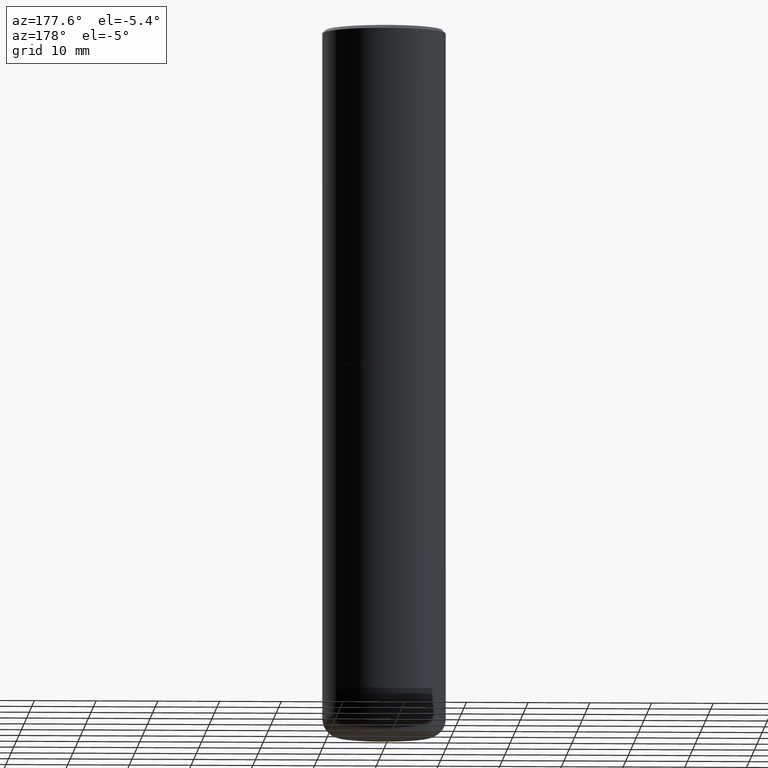
[diagram: clean part render]
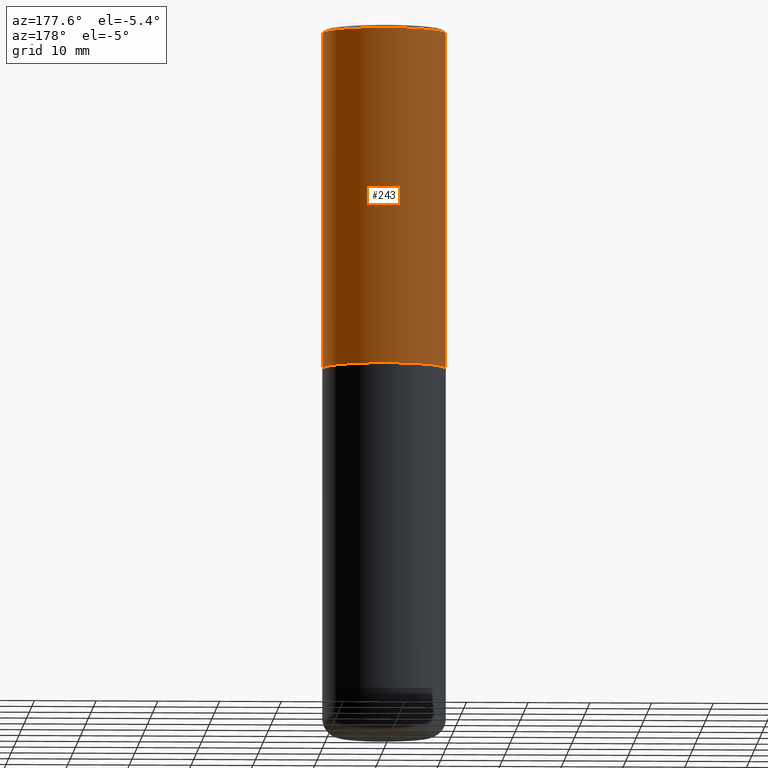
[diagram: same view with one face highlighted and labeled with its STEP entity id]
A machine part, auxiliary view. The second image highlights one B-rep face of the part: STEP entity #243.
In plain terms, the highlighted cylindrical surface (partial cylindrical patch) has radius 10 mm, axis along (-0, 0, 1).
Its self-contained STEP definition (entity closure, byte-faithful):
#2 = DIRECTION ( 'NONE',  ( -2.445468806185136597E-29, 3.491481338843145583E-15, 1.000000000000000000 ) ) ;
#5 = EDGE_CURVE ( 'NONE', #29, #361, #12, .T. ) ;
#12 = LINE ( 'NONE', #147, #284 ) ;
#19 = AXIS2_PLACEMENT_3D ( 'NONE', #94, #2, #186 ) ;
#23 = CARTESIAN_POINT ( 'NONE',  ( 0.3937000000000000499, -2.770807688499515734E-15, -0.02000000000000008715 ) ) ;
#29 = VERTEX_POINT ( 'NONE', #121 ) ;
#63 = FACE_OUTER_BOUND ( 'NONE', #209, .T. ) ;
#81 = CARTESIAN_POINT ( 'NONE',  ( 4.890937612370294178E-31, -6.982962677686321191E-17, -0.02000000000000008715 ) ) ;
#94 = CARTESIAN_POINT ( 'NONE',  ( 0.000000000000000000, 0.000000000000000000, 0.000000000000000000 ) ) ;
#121 = CARTESIAN_POINT ( 'NONE',  ( 0.3937000000000002720, -1.030615461599718763E-14, -2.164399999999999658 ) ) ;
#125 = CIRCLE ( 'NONE', #182, 0.3937000000000000499 ) ;
#147 = CARTESIAN_POINT ( 'NONE',  ( 0.3937000000000001609, -2.749192406205084400E-15, 1.919750796630860732E-29 ) ) ;
#160 = EDGE_CURVE ( 'NONE', #361, #198, #125, .T. ) ;
#162 = VECTOR ( 'NONE', #415, 39.37007874015748143 ) ;
#168 = EDGE_CURVE ( 'NONE', #29, #332, #388, .T. ) ;
#182 = AXIS2_PLACEMENT_3D ( 'NONE', #81, #212, #216 ) ;
#186 = DIRECTION ( 'NONE',  ( 1.000000000000000000, -6.982962677686266711E-15, 4.876176775795935793E-29 ) ) ;
#193 = EDGE_CURVE ( 'NONE', #332, #198, #277, .T. ) ;
#198 = VERTEX_POINT ( 'NONE', #287 ) ;
#209 = EDGE_LOOP ( 'NONE', ( #293, #417, #295, #335 ) ) ;
#212 = DIRECTION ( 'NONE',  ( -2.445468806185136597E-29, 3.491481338843145583E-15, 1.000000000000000000 ) ) ;
#216 = DIRECTION ( 'NONE',  ( 1.000000000000000000, -6.982962677686265922E-15, 0.000000000000000000 ) ) ;
#218 = CYLINDRICAL_SURFACE ( 'NONE', #19, 0.3937000000000001609 ) ;
#230 = CARTESIAN_POINT ( 'NONE',  ( 5.292972684107107621E-29, -7.556962209792102838E-15, -2.164399999999999658 ) ) ;
#243 = ADVANCED_FACE ( 'NONE', ( #63 ), #218, .T. ) ;
#248 = DIRECTION ( 'NONE',  ( 1.000000000000000000, -6.982962677686269077E-15, 0.000000000000000000 ) ) ;
#258 = CARTESIAN_POINT ( 'NONE',  ( -0.3937000000000001609, 2.797406750687515575E-15, -1.936584745033357296E-29 ) ) ;
#262 = CARTESIAN_POINT ( 'NONE',  ( -0.3937000000000003830, -1.015989167596963746E-15, -2.164399999999999658 ) ) ;
#277 = LINE ( 'NONE', #258, #162 ) ;
#283 = DIRECTION ( 'NONE',  ( -2.445468806185136597E-29, 3.491481338843145583E-15, 1.000000000000000000 ) ) ;
#284 = VECTOR ( 'NONE', #310, 39.37007874015748143 ) ;
#287 = CARTESIAN_POINT ( 'NONE',  ( -0.3937000000000000499, 2.679362779428219918E-15, -0.02000000000000008715 ) ) ;
#293 = ORIENTED_EDGE ( 'NONE', *, *, #168, .T. ) ;
#295 = ORIENTED_EDGE ( 'NONE', *, *, #160, .F. ) ;
#310 = DIRECTION ( 'NONE',  ( -2.445468806185136877E-29, 3.491481338843145188E-15, 1.000000000000000000 ) ) ;
#332 = VERTEX_POINT ( 'NONE', #262 ) ;
#335 = ORIENTED_EDGE ( 'NONE', *, *, #5, .F. ) ;
#355 = AXIS2_PLACEMENT_3D ( 'NONE', #230, #283, #248 ) ;
#361 = VERTEX_POINT ( 'NONE', #23 ) ;
#388 = CIRCLE ( 'NONE', #355, 0.3937000000000002720 ) ;
#415 = DIRECTION ( 'NONE',  ( -2.445468806185136877E-29, 3.491481338843145188E-15, 1.000000000000000000 ) ) ;
#417 = ORIENTED_EDGE ( 'NONE', *, *, #193, .T. ) ;